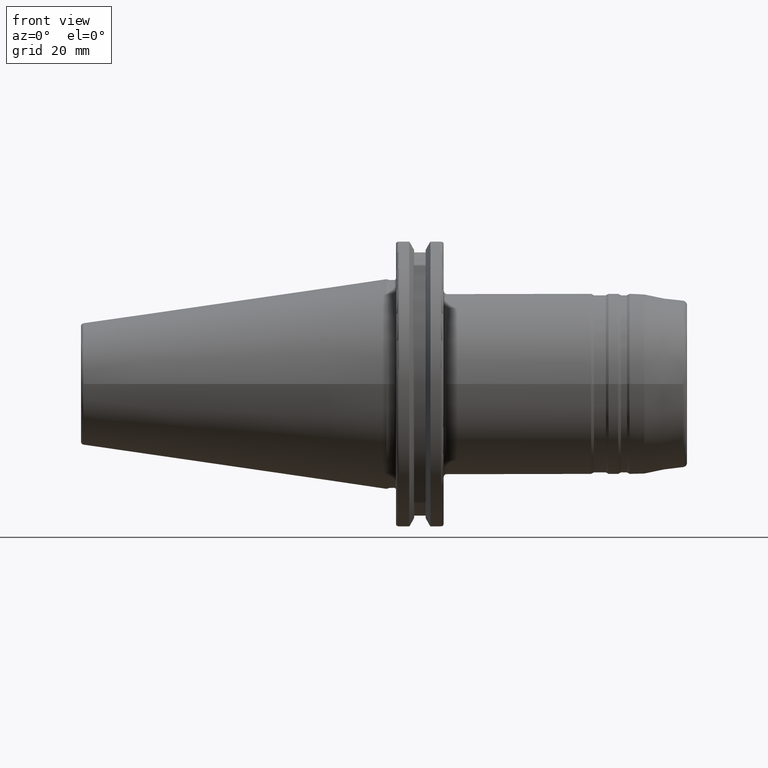
[diagram: clean part render]
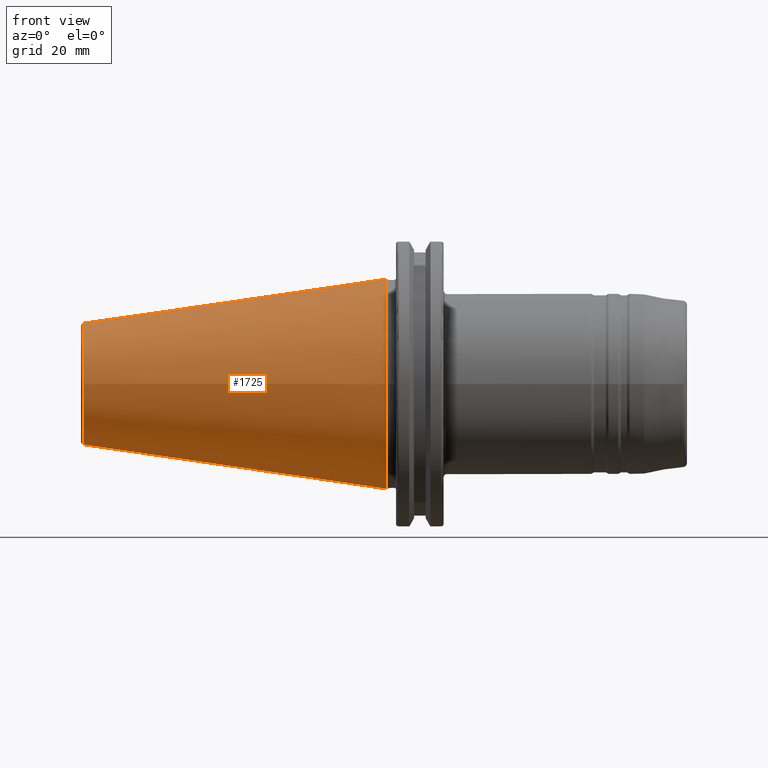
[diagram: same view with one face highlighted and labeled with its STEP entity id]
A machine part, front view. The second image highlights one B-rep face of the part: STEP entity #1725.
In plain terms, the highlighted conical surface has half-angle 8.297 deg.
Its self-contained STEP definition (entity closure, byte-faithful):
#79=CONICAL_SURFACE('',#1961,27.5166666666666,0.14481249823894);
#228=FACE_OUTER_BOUND('',#346,.T.);
#346=EDGE_LOOP('',(#1485,#1486,#1487,#1488,#1489));
#453=LINE('',#3201,#547);
#547=VECTOR('',#2452,27.5166666666666);
#655=CIRCLE('',#1955,20.233121911427);
#656=CIRCLE('',#1956,20.233121911427);
#660=CIRCLE('',#1962,34.925);
#827=VERTEX_POINT('',#3188);
#828=VERTEX_POINT('',#3189);
#831=VERTEX_POINT('',#3199);
#1059=EDGE_CURVE('',#827,#828,#655,.T.);
#1060=EDGE_CURVE('',#828,#827,#656,.T.);
#1064=EDGE_CURVE('',#831,#831,#660,.T.);
#1065=EDGE_CURVE('',#831,#828,#453,.T.);
#1485=ORIENTED_EDGE('',*,*,#1064,.F.);
#1486=ORIENTED_EDGE('',*,*,#1065,.T.);
#1487=ORIENTED_EDGE('',*,*,#1059,.F.);
#1488=ORIENTED_EDGE('',*,*,#1060,.F.);
#1489=ORIENTED_EDGE('',*,*,#1065,.F.);
#1725=ADVANCED_FACE('',(#228),#79,.T.);
#1955=AXIS2_PLACEMENT_3D('',#3190,#2436,#2437);
#1956=AXIS2_PLACEMENT_3D('',#3191,#2438,#2439);
#1961=AXIS2_PLACEMENT_3D('',#3198,#2448,#2449);
#1962=AXIS2_PLACEMENT_3D('',#3200,#2450,#2451);
#2436=DIRECTION('center_axis',(-1.,0.,0.));
#2437=DIRECTION('ref_axis',(0.,-1.,3.06161699786838E-17));
#2438=DIRECTION('center_axis',(-1.,0.,0.));
#2439=DIRECTION('ref_axis',(0.,-1.,3.06161699786838E-17));
#2448=DIRECTION('center_axis',(1.,0.,0.));
#2449=DIRECTION('ref_axis',(0.,1.,0.));
#2450=DIRECTION('center_axis',(1.,0.,0.));
#2451=DIRECTION('ref_axis',(0.,0.,-1.));
#2452=DIRECTION('',(-0.989532981063281,0.144306893071729,1.76724974695192E-17));
#3188=CARTESIAN_POINT('',(-100.744306893072,-2.47784279855872E-15,20.233121911427));
#3189=CARTESIAN_POINT('',(-100.744306893072,-20.233121911427,-2.47784279855872E-15));
#3190=CARTESIAN_POINT('Origin',(-100.744306893072,0.,-3.09730349819841E-15));
#3191=CARTESIAN_POINT('Origin',(-100.744306893072,0.,-3.09730349819841E-15));
#3198=CARTESIAN_POINT('Origin',(-50.8,0.,0.));
#3199=CARTESIAN_POINT('',(-8.88178419700125E-15,-34.925,-4.27707894602213E-15));
#3200=CARTESIAN_POINT('Origin',(0.,0.,0.));
#3201=CARTESIAN_POINT('',(-50.8,-27.5166666666666,-3.3698197756538E-15));